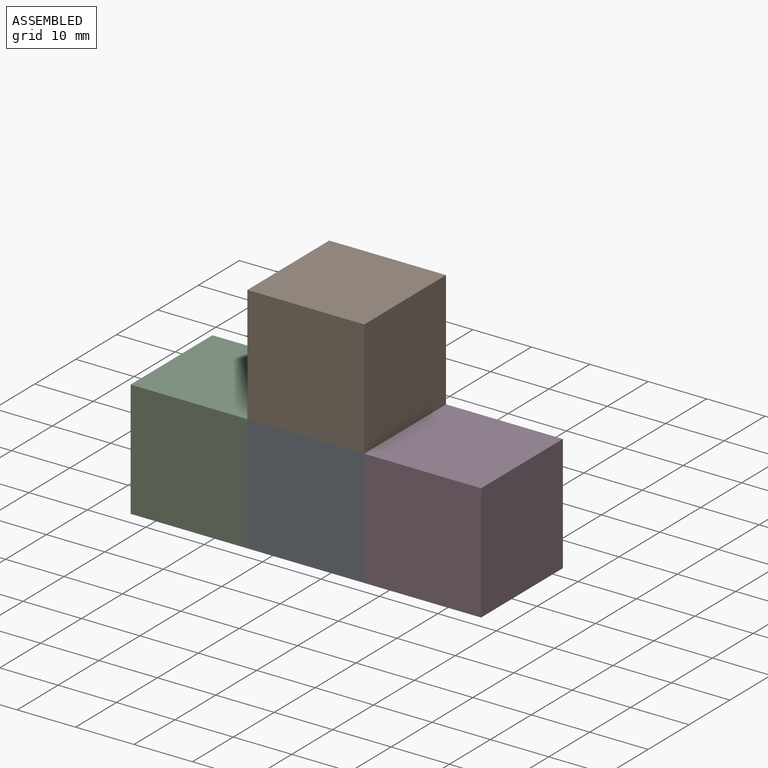
[diagram: assembled view]
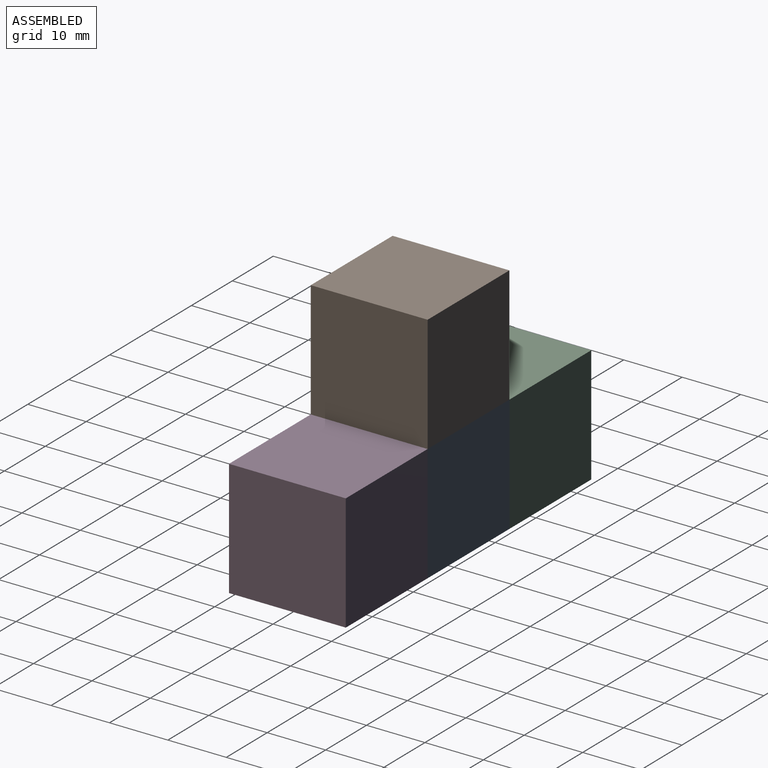
[diagram: assembled view, second angle]
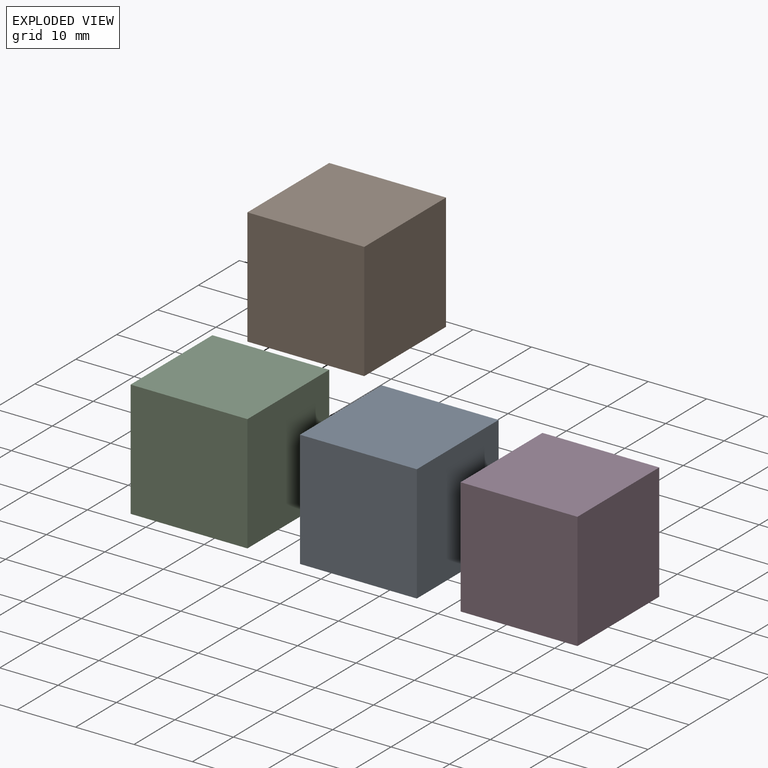
[diagram: exploded view]
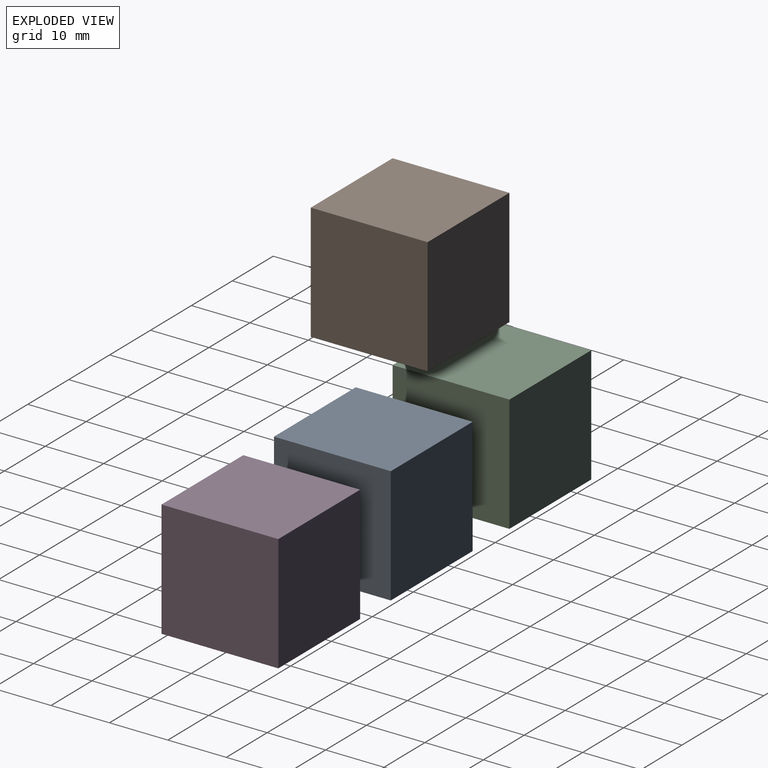
[diagram: exploded view, second angle]
ASSEMBLY  parts=4 mates=3
PART A: 6 faces, bbox 20x20x20 mm
  f0: plane 20x20mm, normal (-1,0,0), area 400mm2, adj f1,f3,f4,f5
  f1: plane 20x20mm, normal (0,-1,0), area 400mm2, adj f0,f2,f4,f5
  f2: plane 20x20mm, normal (1,0,0), area 400mm2, adj f1,f3,f4,f5
  f3: plane 20x20mm, normal (0,1,0), area 400mm2, adj f0,f2,f4,f5
  f4: plane 20x20mm, normal (0,0,1), area 400mm2, adj f0,f1,f2,f3
  f5: plane 20x20mm, normal (0,0,-1), area 400mm2, adj f0,f1,f2,f3
PART B: same geometry as A
PART C: same geometry as A
PART D: same geometry as A
PLACE A t=(-12.89,-9.57,-28.71)mm
PLACE B t=(-12.89,-9.57,-8.71)mm
PLACE C t=(-32.89,-9.57,-28.71)mm
PLACE D t=(7.11,-9.57,-28.71)mm
MATE fastened A.f2 <-> D.f0  axis (1,0,0) through (7.11,0.43,-18.71)mm
MATE fastened A.f4 <-> B.f5  axis (0,0,1) through (-2.89,0.43,-8.71)mm
MATE fastened A.f0 <-> C.f2  axis (-1,0,0) through (-12.89,0.43,-18.71)mm
